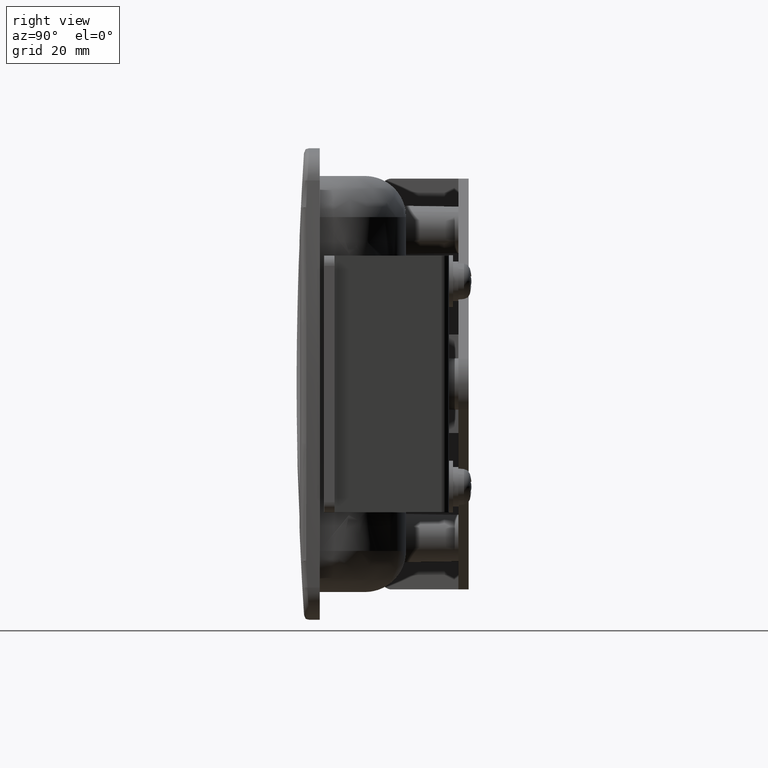
[diagram: clean part render]
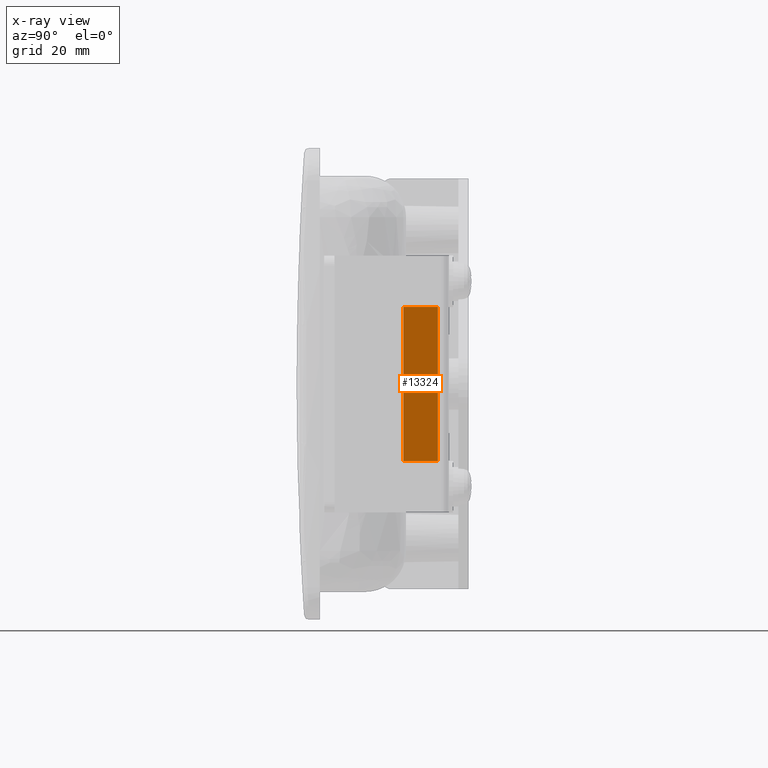
[diagram: x-ray — body ghosted, one internal face saturated and labeled with its STEP entity id]
A machine part, right view, then the same camera in x-ray: the body is ghosted and one INTERNAL B-rep face — a face not visible from any outside direction — is saturated and labeled: STEP entity #13324.
In plain terms, the highlighted face is a freeform B-spline surface patch.
Its self-contained STEP definition (entity closure, byte-faithful):
#13132=CARTESIAN_POINT('',(17.0,-6.0,0.0));
#13133=VERTEX_POINT('',#13132);
#13147=CARTESIAN_POINT('',(17.0,-6.0,-15.000200000000000));
#13148=VERTEX_POINT('',#13147);
#13149=CARTESIAN_POINT('',(17.0,-6.0,0.0));
#13150=CARTESIAN_POINT('',(17.0,-6.0,-15.000200000000000));
#13151=QUASI_UNIFORM_CURVE('',1,(#13149,#13150),.UNSPECIFIED.,.F.,.U.);
#13152=EDGE_CURVE('',#13133,#13148,#13151,.T.);
#13290=CARTESIAN_POINT('',(17.0,-13.010310917016380,-16.498720203475699));
#13291=CARTESIAN_POINT('',(17.0,-13.010310917016380,16.498720739924650));
#13292=CARTESIAN_POINT('',(17.0,-5.666493446930604,-16.498720203475699));
#13293=CARTESIAN_POINT('',(17.0,-5.666493446930604,16.498720739924650));
#13294=B_SPLINE_SURFACE_WITH_KNOTS('',1,1,((#13290,#13292),(#13291,#13293)),.UNSPECIFIED.,.F.,.F.,.U.,(2,2),(2,2),(0.0,32.997440943400349),(0.0,7.343817470085774),.UNSPECIFIED.);
#13295=CARTESIAN_POINT('',(17.0,-6.0,15.000200000000000));
#13296=VERTEX_POINT('',#13295);
#13297=CARTESIAN_POINT('',(17.0,-12.676804304251700,15.000200000000000));
#13298=VERTEX_POINT('',#13297);
#13299=CARTESIAN_POINT('',(17.0,-6.0,15.000200000000000));
#13300=CARTESIAN_POINT('',(17.0,-12.676804304251700,15.000200000000000));
#13301=QUASI_UNIFORM_CURVE('',1,(#13299,#13300),.UNSPECIFIED.,.F.,.U.);
#13302=EDGE_CURVE('',#13296,#13298,#13301,.T.);
#13303=ORIENTED_EDGE('',*,*,#13302,.T.);
#13304=CARTESIAN_POINT('',(17.0,-12.676804304251700,-15.000200000000000));
#13305=VERTEX_POINT('',#13304);
#13306=CARTESIAN_POINT('',(17.0,-12.676804304251700,15.000200000000000));
#13307=CARTESIAN_POINT('',(17.0,-12.676804304251700,-15.000200000000000));
#13308=QUASI_UNIFORM_CURVE('',1,(#13306,#13307),.UNSPECIFIED.,.F.,.U.);
#13309=EDGE_CURVE('',#13298,#13305,#13308,.T.);
#13310=ORIENTED_EDGE('',*,*,#13309,.T.);
#13311=CARTESIAN_POINT('',(17.0,-6.0,-15.000200000000000));
#13312=CARTESIAN_POINT('',(17.0,-12.676804304251700,-15.000200000000000));
#13313=QUASI_UNIFORM_CURVE('',1,(#13311,#13312),.UNSPECIFIED.,.F.,.U.);
#13314=EDGE_CURVE('',#13148,#13305,#13313,.T.);
#13315=ORIENTED_EDGE('',*,*,#13314,.F.);
#13316=ORIENTED_EDGE('',*,*,#13152,.F.);
#13317=CARTESIAN_POINT('',(17.0,-6.0,15.000200000000000));
#13318=CARTESIAN_POINT('',(17.0,-6.0,0.0));
#13319=QUASI_UNIFORM_CURVE('',1,(#13317,#13318),.UNSPECIFIED.,.F.,.U.);
#13320=EDGE_CURVE('',#13296,#13133,#13319,.T.);
#13321=ORIENTED_EDGE('',*,*,#13320,.F.);
#13322=EDGE_LOOP('',(#13303,#13310,#13315,#13316,#13321));
#13323=FACE_OUTER_BOUND('',#13322,.T.);
#13324=ADVANCED_FACE('',(#13323),#13294,.F.);